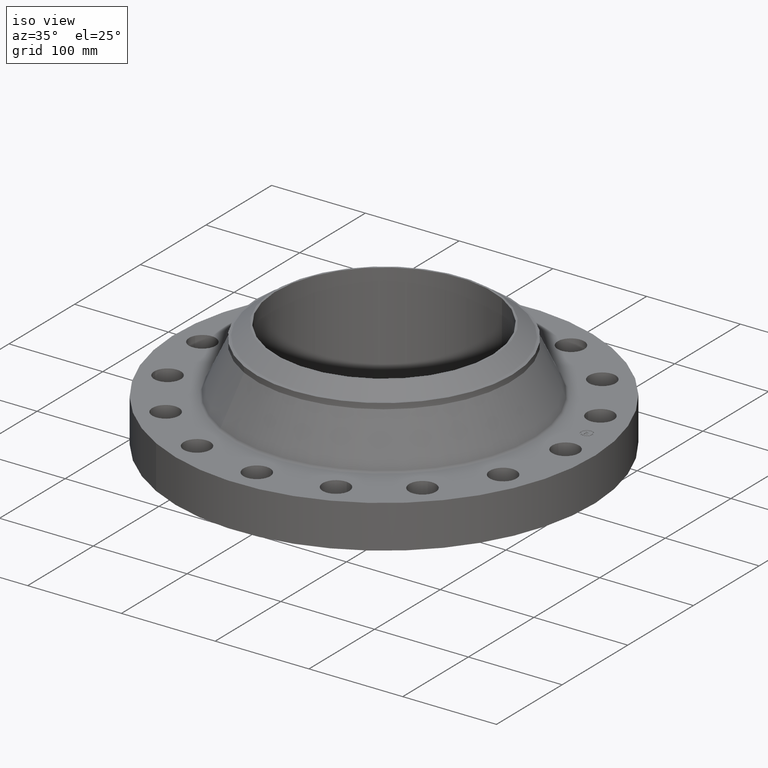
[diagram: clean part render]
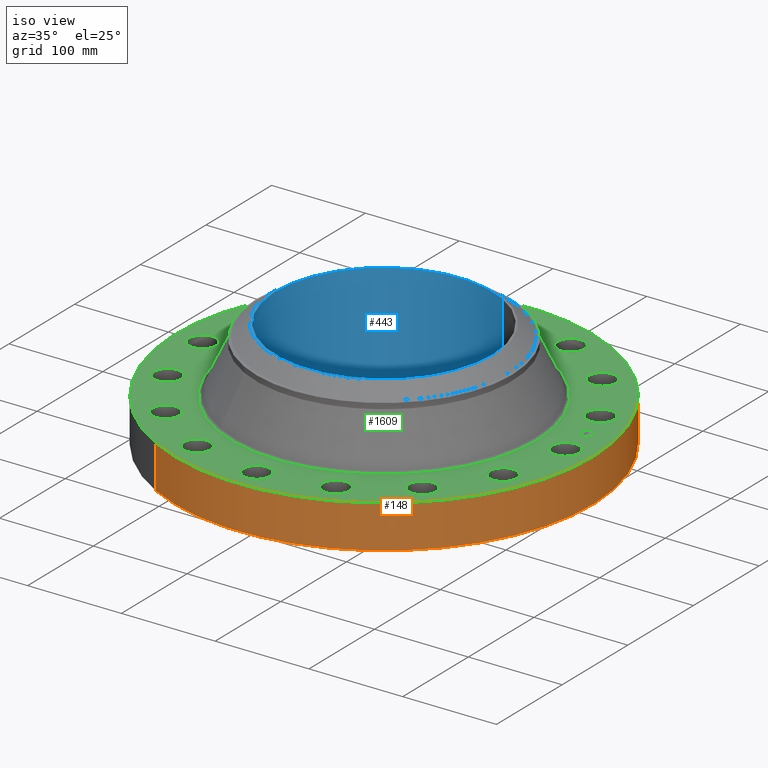
[diagram: same view with three faces highlighted in distinct colors, each labeled with its STEP entity id]
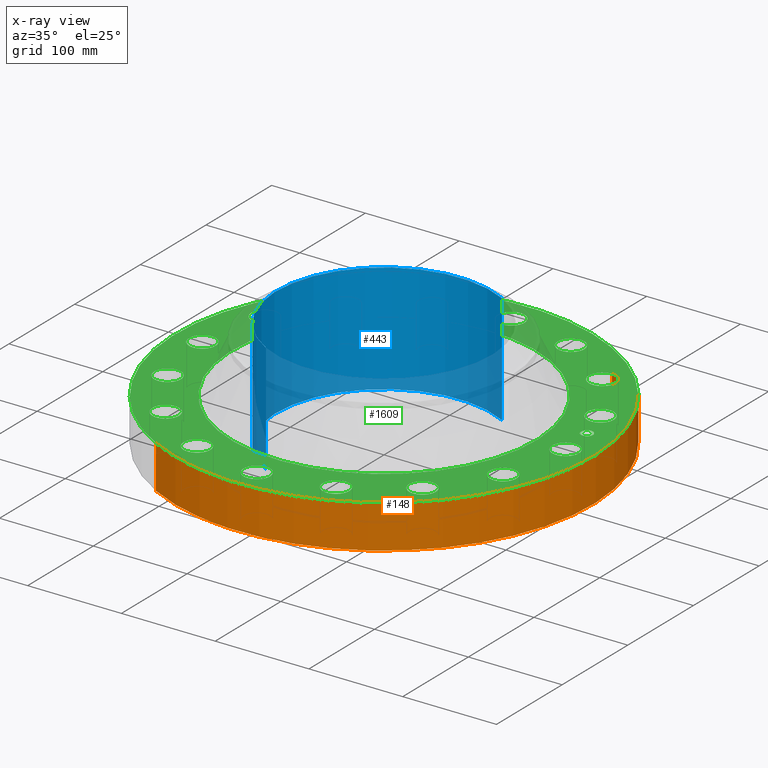
[diagram: x-ray of the same camera — body ghosted, the three highlighted faces saturated]
A machine part, iso view with three faces highlighted in distinct colors.
The next image is the same camera in x-ray (body ghosted, the three faces saturated) — at least one of them is partly hidden behind the body in this view.
Their STEP definitions:

[orange] entity #148 — the highlighted cylindrical surface (partial cylindrical patch) has radius 222.25 mm, axis along (0, 0, -1).
#95=AXIS2_PLACEMENT_3D('Cylinder Axis2P3D',#92,#93,#94) ;
#134=AXIS2_PLACEMENT_3D('Circle Axis2P3D',#132,#133,$) ;
#139=AXIS2_PLACEMENT_3D('Circle Axis2P3D',#137,#138,$) ;
#92=CARTESIAN_POINT('Axis2P3D Location',(0.,0.,2.24875000001)) ;
#101=CARTESIAN_POINT('Vertex',(-4.1949734628,-7.67884741657,8.39223703654E-016)) ;
#103=CARTESIAN_POINT('Vertex',(4.1949734628,7.67884741657,8.39223703654E-016)) ;
#106=CARTESIAN_POINT('Line Origine',(-4.1949734628,-7.67884741657,0.905000000004)) ;
#110=CARTESIAN_POINT('Vertex',(-4.1949734628,-7.67884741657,1.81000000001)) ;
#117=CARTESIAN_POINT('Vertex',(4.1949734628,7.67884741657,1.81000000001)) ;
#120=CARTESIAN_POINT('Line Origine',(4.1949734628,7.67884741657,0.905000000004)) ;
#132=CARTESIAN_POINT('Axis2P3D Location',(0.,0.,8.39223703654E-016)) ;
#137=CARTESIAN_POINT('Axis2P3D Location',(0.,0.,1.81000000001)) ;
#93=DIRECTION('Axis2P3D Direction',(0.,0.,-0.0393700787402)) ;
#94=DIRECTION('Axis2P3D XDirection',(0.0188750212049,0.0345504945626,0.)) ;
#107=DIRECTION('Vector Direction',(0.,0.,-0.0393700787402)) ;
#121=DIRECTION('Vector Direction',(0.,0.,-0.0393700787402)) ;
#133=DIRECTION('Axis2P3D Direction',(0.,0.,-0.0393700787402)) ;
#138=DIRECTION('Axis2P3D Direction',(0.,0.,-0.0393700787402)) ;
#108=VECTOR('Line Direction',#107,0.0393700787402) ;
#122=VECTOR('Line Direction',#121,0.0393700787402) ;
#143=ORIENTED_EDGE('',*,*,#136,.F.) ;
#144=ORIENTED_EDGE('',*,*,#124,.T.) ;
#145=ORIENTED_EDGE('',*,*,#141,.T.) ;
#146=ORIENTED_EDGE('',*,*,#112,.F.) ;
#148=ADVANCED_FACE('PartBody',(#147),#96,.T.) ;
#135=CIRCLE('generated circle',#134,8.75000000003) ;
#140=CIRCLE('generated circle',#139,8.75000000003) ;
#96=CYLINDRICAL_SURFACE('generated cylinder',#95,8.75000000003) ;
#112=EDGE_CURVE('',#102,#111,#109,.F.) ;
#124=EDGE_CURVE('',#104,#118,#123,.F.) ;
#136=EDGE_CURVE('',#104,#102,#135,.T.) ;
#141=EDGE_CURVE('',#118,#111,#140,.T.) ;
#142=EDGE_LOOP('',(#143,#144,#145,#146)) ;
#147=FACE_OUTER_BOUND('',#142,.T.) ;
#109=LINE('Line',#106,#108) ;
#123=LINE('Line',#120,#122) ;
#102=VERTEX_POINT('',#101) ;
#104=VERTEX_POINT('',#103) ;
#111=VERTEX_POINT('',#110) ;
#118=VERTEX_POINT('',#117) ;

[blue] entity #443 — the highlighted cylindrical surface (partial cylindrical patch) has radius 115.087 mm, axis along (0, 0, -1).
#365=AXIS2_PLACEMENT_3D('Circle Axis2P3D',#363,#364,$) ;
#416=AXIS2_PLACEMENT_3D('Cylinder Axis2P3D',#413,#414,#415) ;
#427=AXIS2_PLACEMENT_3D('Circle Axis2P3D',#425,#426,$) ;
#363=CARTESIAN_POINT('Axis2P3D Location',(0.,0.,4.56000000002)) ;
#367=CARTESIAN_POINT('Vertex',(-2.17227711542,-3.97632658794,4.56000000002)) ;
#369=CARTESIAN_POINT('Vertex',(2.17227711542,3.97632658794,4.56000000002)) ;
#413=CARTESIAN_POINT('Axis2P3D Location',(0.,0.,2.24875000001)) ;
#418=CARTESIAN_POINT('Line Origine',(-2.17227711542,-3.97632658794,2.24875000001)) ;
#422=CARTESIAN_POINT('Vertex',(-2.17227711542,-3.97632658794,-0.0625000000003)) ;
#425=CARTESIAN_POINT('Axis2P3D Location',(0.,0.,-0.0625000000003)) ;
#429=CARTESIAN_POINT('Vertex',(2.17227711542,3.97632658794,-0.0625000000003)) ;
#432=CARTESIAN_POINT('Line Origine',(2.17227711542,3.97632658794,2.24875000001)) ;
#364=DIRECTION('Axis2P3D Direction',(0.,0.,-0.0393700787402)) ;
#414=DIRECTION('Axis2P3D Direction',(0.,0.,-0.0393700787402)) ;
#415=DIRECTION('Axis2P3D XDirection',(0.0188750212049,0.0345504945626,0.)) ;
#419=DIRECTION('Vector Direction',(0.,0.,-0.0393700787402)) ;
#426=DIRECTION('Axis2P3D Direction',(0.,0.,-0.0393700787402)) ;
#433=DIRECTION('Vector Direction',(0.,0.,-0.0393700787402)) ;
#420=VECTOR('Line Direction',#419,0.0393700787402) ;
#434=VECTOR('Line Direction',#433,0.0393700787402) ;
#438=ORIENTED_EDGE('',*,*,#371,.F.) ;
#439=ORIENTED_EDGE('',*,*,#424,.T.) ;
#440=ORIENTED_EDGE('',*,*,#431,.T.) ;
#441=ORIENTED_EDGE('',*,*,#436,.F.) ;
#443=ADVANCED_FACE('PartBody',(#442),#417,.F.) ;
#366=CIRCLE('generated circle',#365,4.53100000002) ;
#428=CIRCLE('generated circle',#427,4.53100000002) ;
#417=CYLINDRICAL_SURFACE('generated cylinder',#416,4.53100000002) ;
#371=EDGE_CURVE('',#368,#370,#366,.T.) ;
#424=EDGE_CURVE('',#368,#423,#421,.T.) ;
#431=EDGE_CURVE('',#423,#430,#428,.T.) ;
#436=EDGE_CURVE('',#370,#430,#435,.T.) ;
#437=EDGE_LOOP('',(#438,#439,#440,#441)) ;
#442=FACE_OUTER_BOUND('',#437,.T.) ;
#421=LINE('Line',#418,#420) ;
#435=LINE('Line',#432,#434) ;
#368=VERTEX_POINT('',#367) ;
#370=VERTEX_POINT('',#369) ;
#423=VERTEX_POINT('',#422) ;
#430=VERTEX_POINT('',#429) ;

[green] entity #1609 — the highlighted planar face has unit normal (0, 0, -1).
#65=AXIS2_PLACEMENT_3D('Circle Axis2P3D',#63,#64,$) ;
#82=AXIS2_PLACEMENT_3D('Circle Axis2P3D',#80,#81,$) ;
#115=AXIS2_PLACEMENT_3D('Circle Axis2P3D',#113,#114,$) ;
#139=AXIS2_PLACEMENT_3D('Circle Axis2P3D',#137,#138,$) ;
#156=AXIS2_PLACEMENT_3D('Circle Axis2P3D',#154,#155,$) ;
#191=AXIS2_PLACEMENT_3D('Circle Axis2P3D',#189,#190,$) ;
#890=AXIS2_PLACEMENT_3D('Circle Axis2P3D',#888,#889,$) ;
#902=AXIS2_PLACEMENT_3D('Circle Axis2P3D',#900,#901,$) ;
#933=AXIS2_PLACEMENT_3D('Circle Axis2P3D',#931,#932,$) ;
#945=AXIS2_PLACEMENT_3D('Circle Axis2P3D',#943,#944,$) ;
#976=AXIS2_PLACEMENT_3D('Circle Axis2P3D',#974,#975,$) ;
#988=AXIS2_PLACEMENT_3D('Circle Axis2P3D',#986,#987,$) ;
#1019=AXIS2_PLACEMENT_3D('Circle Axis2P3D',#1017,#1018,$) ;
#1031=AXIS2_PLACEMENT_3D('Circle Axis2P3D',#1029,#1030,$) ;
#1062=AXIS2_PLACEMENT_3D('Circle Axis2P3D',#1060,#1061,$) ;
#1074=AXIS2_PLACEMENT_3D('Circle Axis2P3D',#1072,#1073,$) ;
#1105=AXIS2_PLACEMENT_3D('Circle Axis2P3D',#1103,#1104,$) ;
#1117=AXIS2_PLACEMENT_3D('Circle Axis2P3D',#1115,#1116,$) ;
#1148=AXIS2_PLACEMENT_3D('Circle Axis2P3D',#1146,#1147,$) ;
#1160=AXIS2_PLACEMENT_3D('Circle Axis2P3D',#1158,#1159,$) ;
#1191=AXIS2_PLACEMENT_3D('Circle Axis2P3D',#1189,#1190,$) ;
#1203=AXIS2_PLACEMENT_3D('Circle Axis2P3D',#1201,#1202,$) ;
#1234=AXIS2_PLACEMENT_3D('Circle Axis2P3D',#1232,#1233,$) ;
#1246=AXIS2_PLACEMENT_3D('Circle Axis2P3D',#1244,#1245,$) ;
#1277=AXIS2_PLACEMENT_3D('Circle Axis2P3D',#1275,#1276,$) ;
#1289=AXIS2_PLACEMENT_3D('Circle Axis2P3D',#1287,#1288,$) ;
#1320=AXIS2_PLACEMENT_3D('Circle Axis2P3D',#1318,#1319,$) ;
#1332=AXIS2_PLACEMENT_3D('Circle Axis2P3D',#1330,#1331,$) ;
#1363=AXIS2_PLACEMENT_3D('Circle Axis2P3D',#1361,#1362,$) ;
#1375=AXIS2_PLACEMENT_3D('Circle Axis2P3D',#1373,#1374,$) ;
#1406=AXIS2_PLACEMENT_3D('Circle Axis2P3D',#1404,#1405,$) ;
#1418=AXIS2_PLACEMENT_3D('Circle Axis2P3D',#1416,#1417,$) ;
#1449=AXIS2_PLACEMENT_3D('Circle Axis2P3D',#1447,#1448,$) ;
#1461=AXIS2_PLACEMENT_3D('Circle Axis2P3D',#1459,#1460,$) ;
#1492=AXIS2_PLACEMENT_3D('Circle Axis2P3D',#1490,#1491,$) ;
#1504=AXIS2_PLACEMENT_3D('Circle Axis2P3D',#1502,#1503,$) ;
#1517=AXIS2_PLACEMENT_3D('Plane Axis2P3D',#1514,#1515,#1516) ;
#1593=AXIS2_PLACEMENT_3D('Circle Axis2P3D',#1591,#1592,$) ;
#1602=AXIS2_PLACEMENT_3D('Circle Axis2P3D',#1600,#1601,$) ;
#46=CARTESIAN_POINT('Vertex',(7.13355376537,0.268478301619,1.81000000001)) ;
#60=CARTESIAN_POINT('Vertex',(8.11644623469,-0.268478301619,1.81000000001)) ;
#63=CARTESIAN_POINT('Axis2P3D Location',(7.62500000003,0.,1.81000000001)) ;
#80=CARTESIAN_POINT('Axis2P3D Location',(7.62500000003,0.,1.81000000001)) ;
#110=CARTESIAN_POINT('Vertex',(-4.1949734628,-7.67884741657,1.81000000001)) ;
#113=CARTESIAN_POINT('Axis2P3D Location',(0.,0.,1.81000000001)) ;
#117=CARTESIAN_POINT('Vertex',(4.1949734628,7.67884741657,1.81000000001)) ;
#137=CARTESIAN_POINT('Axis2P3D Location',(0.,0.,1.81000000001)) ;
#154=CARTESIAN_POINT('Axis2P3D Location',(0.,0.,1.81000000001)) ;
#158=CARTESIAN_POINT('Vertex',(3.06165661486,5.6043248416,1.81000000001)) ;
#160=CARTESIAN_POINT('Vertex',(-3.06165661486,-5.6043248416,1.81000000001)) ;
#189=CARTESIAN_POINT('Axis2P3D Location',(0.,0.,1.81000000001)) ;
#878=CARTESIAN_POINT('Vertex',(-6.69328651587,2.4818512321,1.81000000001)) ;
#885=CARTESIAN_POINT('Vertex',(-7.39587635498,3.35407111149,1.81000000001)) ;
#888=CARTESIAN_POINT('Axis2P3D Location',(-7.04458143543,2.9179611718,1.81000000001)) ;
#900=CARTESIAN_POINT('Axis2P3D Location',(-7.04458143543,2.9179611718,1.81000000001)) ;
#921=CARTESIAN_POINT('Vertex',(5.23402706913,-4.85434141378,1.81000000001)) ;
#928=CARTESIAN_POINT('Vertex',(5.54935134401,-5.92903699936,1.81000000001)) ;
#931=CARTESIAN_POINT('Axis2P3D Location',(5.39168920657,-5.39168920657,1.81000000001)) ;
#943=CARTESIAN_POINT('Axis2P3D Location',(5.39168920657,-5.39168920657,1.81000000001)) ;
#964=CARTESIAN_POINT('Vertex',(-5.23402706913,4.85434141378,1.81000000001)) ;
#971=CARTESIAN_POINT('Vertex',(-5.54935134401,5.92903699936,1.81000000001)) ;
#974=CARTESIAN_POINT('Axis2P3D Location',(-5.39168920657,5.39168920657,1.81000000001)) ;
#986=CARTESIAN_POINT('Axis2P3D Location',(-5.39168920657,5.39168920657,1.81000000001)) ;
#1007=CARTESIAN_POINT('Vertex',(2.97793444768,-6.48780211991,1.81000000001)) ;
#1014=CARTESIAN_POINT('Vertex',(2.85798789591,-7.60136075094,1.81000000001)) ;
#1017=CARTESIAN_POINT('Axis2P3D Location',(2.9179611718,-7.04458143543,1.81000000001)) ;
#1029=CARTESIAN_POINT('Axis2P3D Location',(2.9179611718,-7.04458143543,1.81000000001)) ;
#1050=CARTESIAN_POINT('Vertex',(-2.97793444768,6.48780211991,1.81000000001)) ;
#1057=CARTESIAN_POINT('Vertex',(-2.85798789591,7.60136075094,1.81000000001)) ;
#1060=CARTESIAN_POINT('Axis2P3D Location',(-2.9179611718,7.04458143543,1.81000000001)) ;
#1072=CARTESIAN_POINT('Axis2P3D Location',(-2.9179611718,7.04458143543,1.81000000001)) ;
#1093=CARTESIAN_POINT('Vertex',(0.268478301619,-7.13355376537,1.81000000001)) ;
#1100=CARTESIAN_POINT('Vertex',(-0.268478301619,-8.11644623469,1.81000000001)) ;
#1103=CARTESIAN_POINT('Axis2P3D Location',(-6.52068346028E-016,-7.62500000003,1.81000000001)) ;
#1115=CARTESIAN_POINT('Axis2P3D Location',(-6.52068346028E-016,-7.62500000003,1.81000000001)) ;
#1136=CARTESIAN_POINT('Vertex',(-0.268478301619,7.13355376537,1.81000000001)) ;
#1143=CARTESIAN_POINT('Vertex',(0.268478301619,8.11644623469,1.81000000001)) ;
#1146=CARTESIAN_POINT('Axis2P3D Location',(-2.81724838326E-016,7.62500000003,1.81000000001)) ;
#1158=CARTESIAN_POINT('Axis2P3D Location',(-2.81724838326E-016,7.62500000003,1.81000000001)) ;
#1179=CARTESIAN_POINT('Vertex',(-2.4818512321,-6.69328651587,1.81000000001)) ;
#1186=CARTESIAN_POINT('Vertex',(-3.35407111149,-7.39587635498,1.81000000001)) ;
#1189=CARTESIAN_POINT('Axis2P3D Location',(-2.9179611718,-7.04458143543,1.81000000001)) ;
#1201=CARTESIAN_POINT('Axis2P3D Location',(-2.9179611718,-7.04458143543,1.81000000001)) ;
#1222=CARTESIAN_POINT('Vertex',(2.4818512321,6.69328651587,1.81000000001)) ;
#1229=CARTESIAN_POINT('Vertex',(3.35407111149,7.39587635498,1.81000000001)) ;
#1232=CARTESIAN_POINT('Axis2P3D Location',(2.9179611718,7.04458143543,1.81000000001)) ;
#1244=CARTESIAN_POINT('Axis2P3D Location',(2.9179611718,7.04458143543,1.81000000001)) ;
#1265=CARTESIAN_POINT('Vertex',(-4.85434141378,-5.23402706913,1.81000000001)) ;
#1272=CARTESIAN_POINT('Vertex',(-5.92903699936,-5.54935134401,1.81000000001)) ;
#1275=CARTESIAN_POINT('Axis2P3D Location',(-5.39168920657,-5.39168920657,1.81000000001)) ;
#1287=CARTESIAN_POINT('Axis2P3D Location',(-5.39168920657,-5.39168920657,1.81000000001)) ;
#1308=CARTESIAN_POINT('Vertex',(4.85434141378,5.23402706913,1.81000000001)) ;
#1315=CARTESIAN_POINT('Vertex',(5.92903699936,5.54935134401,1.81000000001)) ;
#1318=CARTESIAN_POINT('Axis2P3D Location',(5.39168920657,5.39168920657,1.81000000001)) ;
#1330=CARTESIAN_POINT('Axis2P3D Location',(5.39168920657,5.39168920657,1.81000000001)) ;
#1351=CARTESIAN_POINT('Vertex',(-6.48780211991,-2.97793444768,1.81000000001)) ;
#1358=CARTESIAN_POINT('Vertex',(-7.60136075094,-2.85798789591,1.81000000001)) ;
#1361=CARTESIAN_POINT('Axis2P3D Location',(-7.04458143543,-2.9179611718,1.81000000001)) ;
#1373=CARTESIAN_POINT('Axis2P3D Location',(-7.04458143543,-2.9179611718,1.81000000001)) ;
#1394=CARTESIAN_POINT('Vertex',(6.48780211991,2.97793444768,1.81000000001)) ;
#1401=CARTESIAN_POINT('Vertex',(7.60136075094,2.85798789591,1.81000000001)) ;
#1404=CARTESIAN_POINT('Axis2P3D Location',(7.04458143543,2.9179611718,1.81000000001)) ;
#1416=CARTESIAN_POINT('Axis2P3D Location',(7.04458143543,2.9179611718,1.81000000001)) ;
#1437=CARTESIAN_POINT('Vertex',(-7.13355376537,-0.268478301619,1.81000000001)) ;
#1444=CARTESIAN_POINT('Vertex',(-8.11644623469,0.268478301619,1.81000000001)) ;
#1447=CARTESIAN_POINT('Axis2P3D Location',(-7.62500000003,-9.33793184354E-016,1.81000000001)) ;
#1459=CARTESIAN_POINT('Axis2P3D Location',(-7.62500000003,-9.33793184354E-016,1.81000000001)) ;
#1480=CARTESIAN_POINT('Vertex',(6.69328651587,-2.4818512321,1.81000000001)) ;
#1487=CARTESIAN_POINT('Vertex',(7.39587635498,-3.35407111149,1.81000000001)) ;
#1490=CARTESIAN_POINT('Axis2P3D Location',(7.04458143543,-2.9179611718,1.81000000001)) ;
#1502=CARTESIAN_POINT('Axis2P3D Location',(7.04458143543,-2.9179611718,1.81000000001)) ;
#1514=CARTESIAN_POINT('Axis2P3D Location',(0.,8.75000000003,1.81000000001)) ;
#1591=CARTESIAN_POINT('Axis2P3D Location',(7.4784877631,1.48756370538,1.81000000001)) ;
#1595=CARTESIAN_POINT('Vertex',(7.43020290841,1.73030806228,1.81000000001)) ;
#1597=CARTESIAN_POINT('Vertex',(7.5267726178,1.24481934848,1.81000000001)) ;
#1600=CARTESIAN_POINT('Axis2P3D Location',(7.4784877631,1.48756370538,1.81000000001)) ;
#64=DIRECTION('Axis2P3D Direction',(0.,-0.,-0.0393700787402)) ;
#81=DIRECTION('Axis2P3D Direction',(0.,-0.,-0.0393700787402)) ;
#114=DIRECTION('Axis2P3D Direction',(0.,0.,-0.0393700787402)) ;
#138=DIRECTION('Axis2P3D Direction',(0.,0.,-0.0393700787402)) ;
#155=DIRECTION('Axis2P3D Direction',(0.,0.,-0.0393700787402)) ;
#190=DIRECTION('Axis2P3D Direction',(0.,0.,-0.0393700787402)) ;
#889=DIRECTION('Axis2P3D Direction',(0.,0.,-0.0393700787402)) ;
#901=DIRECTION('Axis2P3D Direction',(0.,0.,-0.0393700787402)) ;
#932=DIRECTION('Axis2P3D Direction',(0.,-0.,-0.0393700787402)) ;
#944=DIRECTION('Axis2P3D Direction',(0.,-0.,-0.0393700787402)) ;
#975=DIRECTION('Axis2P3D Direction',(0.,0.,-0.0393700787402)) ;
#987=DIRECTION('Axis2P3D Direction',(0.,0.,-0.0393700787402)) ;
#1018=DIRECTION('Axis2P3D Direction',(0.,-0.,-0.0393700787402)) ;
#1030=DIRECTION('Axis2P3D Direction',(0.,-0.,-0.0393700787402)) ;
#1061=DIRECTION('Axis2P3D Direction',(0.,0.,-0.0393700787402)) ;
#1073=DIRECTION('Axis2P3D Direction',(0.,0.,-0.0393700787402)) ;
#1104=DIRECTION('Axis2P3D Direction',(0.,-0.,-0.0393700787402)) ;
#1116=DIRECTION('Axis2P3D Direction',(0.,-0.,-0.0393700787402)) ;
#1147=DIRECTION('Axis2P3D Direction',(0.,0.,-0.0393700787402)) ;
#1159=DIRECTION('Axis2P3D Direction',(0.,0.,-0.0393700787402)) ;
#1190=DIRECTION('Axis2P3D Direction',(-0.,0.,-0.0393700787402)) ;
#1202=DIRECTION('Axis2P3D Direction',(-0.,0.,-0.0393700787402)) ;
#1233=DIRECTION('Axis2P3D Direction',(0.,0.,-0.0393700787402)) ;
#1245=DIRECTION('Axis2P3D Direction',(0.,0.,-0.0393700787402)) ;
#1276=DIRECTION('Axis2P3D Direction',(-0.,0.,-0.0393700787402)) ;
#1288=DIRECTION('Axis2P3D Direction',(-0.,0.,-0.0393700787402)) ;
#1319=DIRECTION('Axis2P3D Direction',(0.,0.,-0.0393700787402)) ;
#1331=DIRECTION('Axis2P3D Direction',(0.,0.,-0.0393700787402)) ;
#1362=DIRECTION('Axis2P3D Direction',(-0.,0.,-0.0393700787402)) ;
#1374=DIRECTION('Axis2P3D Direction',(-0.,0.,-0.0393700787402)) ;
#1405=DIRECTION('Axis2P3D Direction',(0.,0.,-0.0393700787402)) ;
#1417=DIRECTION('Axis2P3D Direction',(0.,0.,-0.0393700787402)) ;
#1448=DIRECTION('Axis2P3D Direction',(-0.,0.,-0.0393700787402)) ;
#1460=DIRECTION('Axis2P3D Direction',(-0.,0.,-0.0393700787402)) ;
#1491=DIRECTION('Axis2P3D Direction',(0.,-0.,-0.0393700787402)) ;
#1503=DIRECTION('Axis2P3D Direction',(0.,-0.,-0.0393700787402)) ;
#1515=DIRECTION('Axis2P3D Direction',(0.,0.,-0.0393700787402)) ;
#1516=DIRECTION('Axis2P3D XDirection',(0.0393700787402,0.,0.)) ;
#1592=DIRECTION('Axis2P3D Direction',(0.,0.,-0.0393700787402)) ;
#1601=DIRECTION('Axis2P3D Direction',(0.,0.,-0.0393700787402)) ;
#1520=ORIENTED_EDGE('',*,*,#141,.F.) ;
#1521=ORIENTED_EDGE('',*,*,#119,.F.) ;
#1524=ORIENTED_EDGE('',*,*,#67,.T.) ;
#1525=ORIENTED_EDGE('',*,*,#84,.T.) ;
#1528=ORIENTED_EDGE('',*,*,#193,.T.) ;
#1529=ORIENTED_EDGE('',*,*,#162,.T.) ;
#1532=ORIENTED_EDGE('',*,*,#1506,.T.) ;
#1533=ORIENTED_EDGE('',*,*,#1494,.T.) ;
#1536=ORIENTED_EDGE('',*,*,#947,.T.) ;
#1537=ORIENTED_EDGE('',*,*,#935,.T.) ;
#1540=ORIENTED_EDGE('',*,*,#1033,.T.) ;
#1541=ORIENTED_EDGE('',*,*,#1021,.T.) ;
#1544=ORIENTED_EDGE('',*,*,#1119,.T.) ;
#1545=ORIENTED_EDGE('',*,*,#1107,.T.) ;
#1548=ORIENTED_EDGE('',*,*,#1205,.T.) ;
#1549=ORIENTED_EDGE('',*,*,#1193,.T.) ;
#1552=ORIENTED_EDGE('',*,*,#1291,.T.) ;
#1553=ORIENTED_EDGE('',*,*,#1279,.T.) ;
#1556=ORIENTED_EDGE('',*,*,#1377,.T.) ;
#1557=ORIENTED_EDGE('',*,*,#1365,.T.) ;
#1560=ORIENTED_EDGE('',*,*,#1463,.T.) ;
#1561=ORIENTED_EDGE('',*,*,#1451,.T.) ;
#1564=ORIENTED_EDGE('',*,*,#904,.T.) ;
#1565=ORIENTED_EDGE('',*,*,#892,.T.) ;
#1568=ORIENTED_EDGE('',*,*,#990,.T.) ;
#1569=ORIENTED_EDGE('',*,*,#978,.T.) ;
#1572=ORIENTED_EDGE('',*,*,#1076,.T.) ;
#1573=ORIENTED_EDGE('',*,*,#1064,.T.) ;
#1576=ORIENTED_EDGE('',*,*,#1162,.T.) ;
#1577=ORIENTED_EDGE('',*,*,#1150,.T.) ;
#1580=ORIENTED_EDGE('',*,*,#1248,.T.) ;
#1581=ORIENTED_EDGE('',*,*,#1236,.T.) ;
#1584=ORIENTED_EDGE('',*,*,#1334,.T.) ;
#1585=ORIENTED_EDGE('',*,*,#1322,.T.) ;
#1588=ORIENTED_EDGE('',*,*,#1420,.T.) ;
#1589=ORIENTED_EDGE('',*,*,#1408,.T.) ;
#1606=ORIENTED_EDGE('',*,*,#1599,.T.) ;
#1607=ORIENTED_EDGE('',*,*,#1604,.T.) ;
#1526=FACE_BOUND('',#1523,.T.) ;
#1530=FACE_BOUND('',#1527,.T.) ;
#1534=FACE_BOUND('',#1531,.T.) ;
#1538=FACE_BOUND('',#1535,.T.) ;
#1542=FACE_BOUND('',#1539,.T.) ;
#1546=FACE_BOUND('',#1543,.T.) ;
#1550=FACE_BOUND('',#1547,.T.) ;
#1554=FACE_BOUND('',#1551,.T.) ;
#1558=FACE_BOUND('',#1555,.T.) ;
#1562=FACE_BOUND('',#1559,.T.) ;
#1566=FACE_BOUND('',#1563,.T.) ;
#1570=FACE_BOUND('',#1567,.T.) ;
#1574=FACE_BOUND('',#1571,.T.) ;
#1578=FACE_BOUND('',#1575,.T.) ;
#1582=FACE_BOUND('',#1579,.T.) ;
#1586=FACE_BOUND('',#1583,.T.) ;
#1590=FACE_BOUND('',#1587,.T.) ;
#1608=FACE_BOUND('',#1605,.T.) ;
#1609=ADVANCED_FACE('PartBody',(#1522,#1526,#1530,#1534,#1538,#1542,#1546,#1550,#1554,#1558,#1562,#1566,#1570,#1574,#1578,#1582,#1586,#1590,#1608),#1518,.F.) ;
#66=CIRCLE('generated circle',#65,0.560000000002) ;
#83=CIRCLE('generated circle',#82,0.560000000002) ;
#116=CIRCLE('generated circle',#115,8.75000000003) ;
#140=CIRCLE('generated circle',#139,8.75000000003) ;
#157=CIRCLE('generated circle',#156,6.38609412376) ;
#192=CIRCLE('generated circle',#191,6.38609412376) ;
#891=CIRCLE('generated circle',#890,0.560000000002) ;
#903=CIRCLE('generated circle',#902,0.560000000002) ;
#934=CIRCLE('generated circle',#933,0.560000000002) ;
#946=CIRCLE('generated circle',#945,0.560000000002) ;
#977=CIRCLE('generated circle',#976,0.560000000002) ;
#989=CIRCLE('generated circle',#988,0.560000000002) ;
#1020=CIRCLE('generated circle',#1019,0.560000000002) ;
#1032=CIRCLE('generated circle',#1031,0.560000000002) ;
#1063=CIRCLE('generated circle',#1062,0.560000000002) ;
#1075=CIRCLE('generated circle',#1074,0.560000000002) ;
#1106=CIRCLE('generated circle',#1105,0.560000000002) ;
#1118=CIRCLE('generated circle',#1117,0.560000000002) ;
#1149=CIRCLE('generated circle',#1148,0.560000000002) ;
#1161=CIRCLE('generated circle',#1160,0.560000000002) ;
#1192=CIRCLE('generated circle',#1191,0.560000000002) ;
#1204=CIRCLE('generated circle',#1203,0.560000000002) ;
#1235=CIRCLE('generated circle',#1234,0.560000000002) ;
#1247=CIRCLE('generated circle',#1246,0.560000000002) ;
#1278=CIRCLE('generated circle',#1277,0.560000000002) ;
#1290=CIRCLE('generated circle',#1289,0.560000000002) ;
#1321=CIRCLE('generated circle',#1320,0.560000000002) ;
#1333=CIRCLE('generated circle',#1332,0.560000000002) ;
#1364=CIRCLE('generated circle',#1363,0.560000000002) ;
#1376=CIRCLE('generated circle',#1375,0.560000000002) ;
#1407=CIRCLE('generated circle',#1406,0.560000000002) ;
#1419=CIRCLE('generated circle',#1418,0.560000000002) ;
#1450=CIRCLE('generated circle',#1449,0.560000000002) ;
#1462=CIRCLE('generated circle',#1461,0.560000000002) ;
#1493=CIRCLE('generated circle',#1492,0.560000000002) ;
#1505=CIRCLE('generated circle',#1504,0.560000000002) ;
#1594=CIRCLE('generated circle',#1593,0.247500000001) ;
#1603=CIRCLE('generated circle',#1602,0.247500000001) ;
#67=EDGE_CURVE('',#47,#61,#66,.T.) ;
#84=EDGE_CURVE('',#61,#47,#83,.T.) ;
#119=EDGE_CURVE('',#111,#118,#116,.T.) ;
#141=EDGE_CURVE('',#118,#111,#140,.T.) ;
#162=EDGE_CURVE('',#159,#161,#157,.T.) ;
#193=EDGE_CURVE('',#161,#159,#192,.T.) ;
#892=EDGE_CURVE('',#879,#886,#891,.T.) ;
#904=EDGE_CURVE('',#886,#879,#903,.T.) ;
#935=EDGE_CURVE('',#922,#929,#934,.T.) ;
#947=EDGE_CURVE('',#929,#922,#946,.T.) ;
#978=EDGE_CURVE('',#965,#972,#977,.T.) ;
#990=EDGE_CURVE('',#972,#965,#989,.T.) ;
#1021=EDGE_CURVE('',#1008,#1015,#1020,.T.) ;
#1033=EDGE_CURVE('',#1015,#1008,#1032,.T.) ;
#1064=EDGE_CURVE('',#1051,#1058,#1063,.T.) ;
#1076=EDGE_CURVE('',#1058,#1051,#1075,.T.) ;
#1107=EDGE_CURVE('',#1094,#1101,#1106,.T.) ;
#1119=EDGE_CURVE('',#1101,#1094,#1118,.T.) ;
#1150=EDGE_CURVE('',#1137,#1144,#1149,.T.) ;
#1162=EDGE_CURVE('',#1144,#1137,#1161,.T.) ;
#1193=EDGE_CURVE('',#1180,#1187,#1192,.T.) ;
#1205=EDGE_CURVE('',#1187,#1180,#1204,.T.) ;
#1236=EDGE_CURVE('',#1223,#1230,#1235,.T.) ;
#1248=EDGE_CURVE('',#1230,#1223,#1247,.T.) ;
#1279=EDGE_CURVE('',#1266,#1273,#1278,.T.) ;
#1291=EDGE_CURVE('',#1273,#1266,#1290,.T.) ;
#1322=EDGE_CURVE('',#1309,#1316,#1321,.T.) ;
#1334=EDGE_CURVE('',#1316,#1309,#1333,.T.) ;
#1365=EDGE_CURVE('',#1352,#1359,#1364,.T.) ;
#1377=EDGE_CURVE('',#1359,#1352,#1376,.T.) ;
#1408=EDGE_CURVE('',#1395,#1402,#1407,.T.) ;
#1420=EDGE_CURVE('',#1402,#1395,#1419,.T.) ;
#1451=EDGE_CURVE('',#1438,#1445,#1450,.T.) ;
#1463=EDGE_CURVE('',#1445,#1438,#1462,.T.) ;
#1494=EDGE_CURVE('',#1481,#1488,#1493,.T.) ;
#1506=EDGE_CURVE('',#1488,#1481,#1505,.T.) ;
#1599=EDGE_CURVE('',#1596,#1598,#1594,.T.) ;
#1604=EDGE_CURVE('',#1598,#1596,#1603,.T.) ;
#1519=EDGE_LOOP('',(#1520,#1521)) ;
#1523=EDGE_LOOP('',(#1524,#1525)) ;
#1527=EDGE_LOOP('',(#1528,#1529)) ;
#1531=EDGE_LOOP('',(#1532,#1533)) ;
#1535=EDGE_LOOP('',(#1536,#1537)) ;
#1539=EDGE_LOOP('',(#1540,#1541)) ;
#1543=EDGE_LOOP('',(#1544,#1545)) ;
#1547=EDGE_LOOP('',(#1548,#1549)) ;
#1551=EDGE_LOOP('',(#1552,#1553)) ;
#1555=EDGE_LOOP('',(#1556,#1557)) ;
#1559=EDGE_LOOP('',(#1560,#1561)) ;
#1563=EDGE_LOOP('',(#1564,#1565)) ;
#1567=EDGE_LOOP('',(#1568,#1569)) ;
#1571=EDGE_LOOP('',(#1572,#1573)) ;
#1575=EDGE_LOOP('',(#1576,#1577)) ;
#1579=EDGE_LOOP('',(#1580,#1581)) ;
#1583=EDGE_LOOP('',(#1584,#1585)) ;
#1587=EDGE_LOOP('',(#1588,#1589)) ;
#1605=EDGE_LOOP('',(#1606,#1607)) ;
#1522=FACE_OUTER_BOUND('',#1519,.T.) ;
#1518=PLANE('',#1517) ;
#47=VERTEX_POINT('',#46) ;
#61=VERTEX_POINT('',#60) ;
#111=VERTEX_POINT('',#110) ;
#118=VERTEX_POINT('',#117) ;
#159=VERTEX_POINT('',#158) ;
#161=VERTEX_POINT('',#160) ;
#879=VERTEX_POINT('',#878) ;
#886=VERTEX_POINT('',#885) ;
#922=VERTEX_POINT('',#921) ;
#929=VERTEX_POINT('',#928) ;
#965=VERTEX_POINT('',#964) ;
#972=VERTEX_POINT('',#971) ;
#1008=VERTEX_POINT('',#1007) ;
#1015=VERTEX_POINT('',#1014) ;
#1051=VERTEX_POINT('',#1050) ;
#1058=VERTEX_POINT('',#1057) ;
#1094=VERTEX_POINT('',#1093) ;
#1101=VERTEX_POINT('',#1100) ;
#1137=VERTEX_POINT('',#1136) ;
#1144=VERTEX_POINT('',#1143) ;
#1180=VERTEX_POINT('',#1179) ;
#1187=VERTEX_POINT('',#1186) ;
#1223=VERTEX_POINT('',#1222) ;
#1230=VERTEX_POINT('',#1229) ;
#1266=VERTEX_POINT('',#1265) ;
#1273=VERTEX_POINT('',#1272) ;
#1309=VERTEX_POINT('',#1308) ;
#1316=VERTEX_POINT('',#1315) ;
#1352=VERTEX_POINT('',#1351) ;
#1359=VERTEX_POINT('',#1358) ;
#1395=VERTEX_POINT('',#1394) ;
#1402=VERTEX_POINT('',#1401) ;
#1438=VERTEX_POINT('',#1437) ;
#1445=VERTEX_POINT('',#1444) ;
#1481=VERTEX_POINT('',#1480) ;
#1488=VERTEX_POINT('',#1487) ;
#1596=VERTEX_POINT('',#1595) ;
#1598=VERTEX_POINT('',#1597) ;